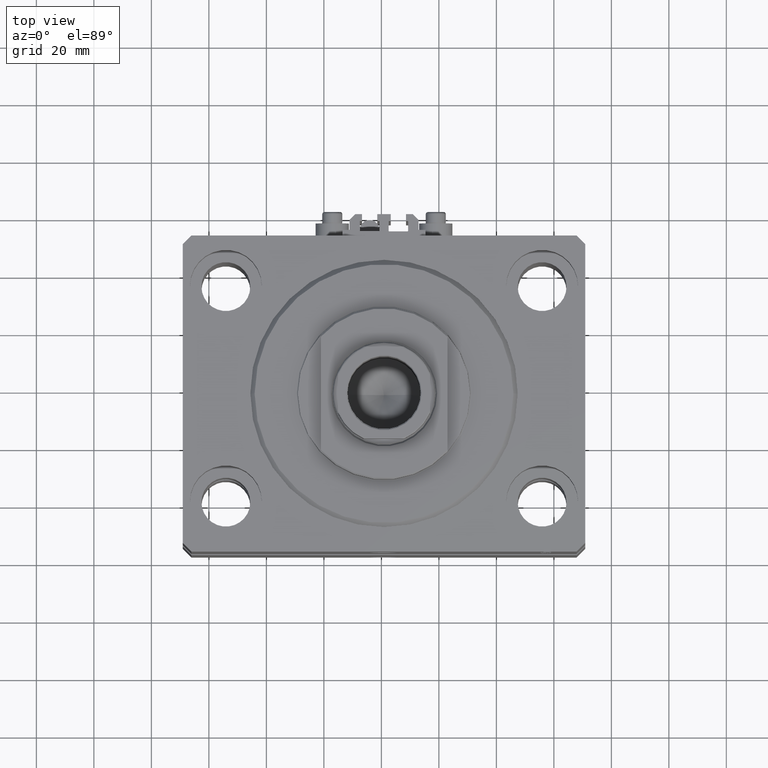
[diagram: clean part render]
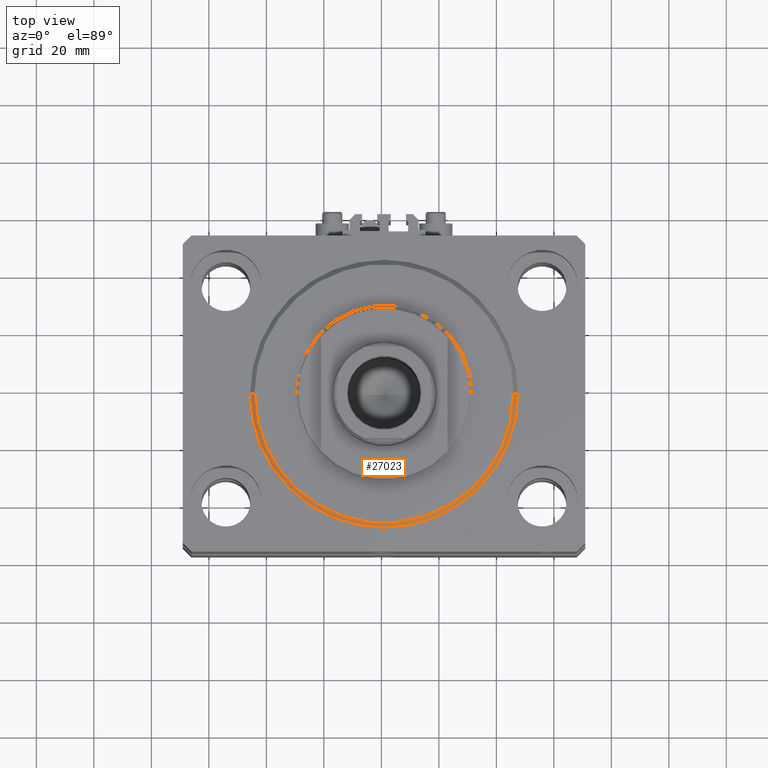
[diagram: same view with one face highlighted and labeled with its STEP entity id]
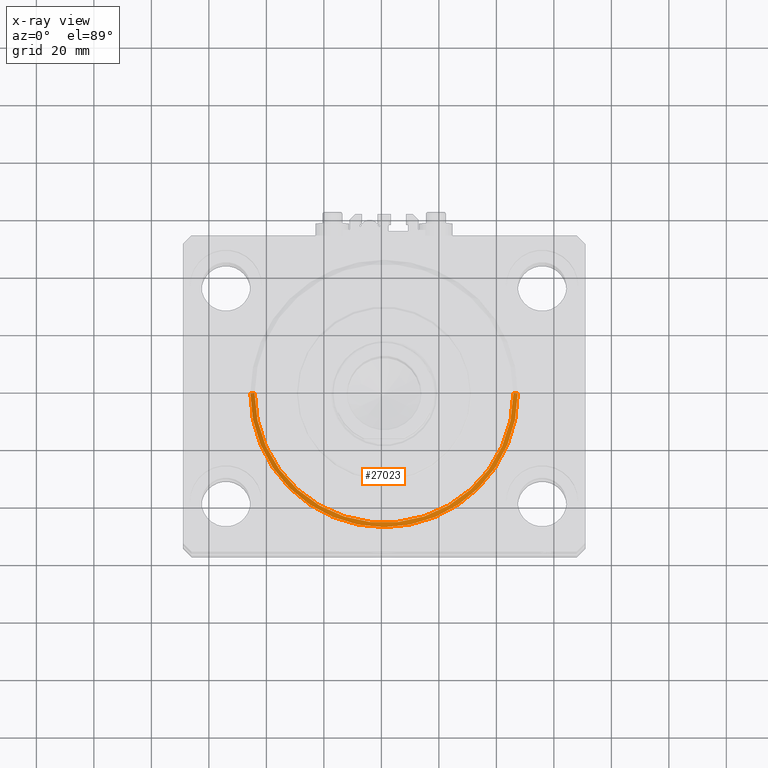
[diagram: x-ray of the same camera — body ghosted, the highlighted face saturated]
A machine part, top view. The second image highlights one B-rep face of the part: STEP entity #27023.
The next image is the same camera in x-ray: the body ghosted, the highlighted face saturated — about 0% of this face is hidden behind the body in this view.
In plain terms, the highlighted conical surface has half-angle 45 deg.
Its self-contained STEP definition (entity closure, byte-faithful):
#179 = EDGE_CURVE ( 'NONE', #33458, #33394, #7911, .T. ) ;
#748 = EDGE_LOOP ( 'NONE', ( #21574, #32615, #45317, #39785 ) ) ;
#3758 = EDGE_CURVE ( 'NONE', #41580, #33394, #24079, .T. ) ;
#4929 = DIRECTION ( 'NONE',  ( -0.000000000000000000, -0.000000000000000000, -1.000000000000000000 ) ) ;
#7911 = LINE ( 'NONE', #18937, #48557 ) ;
#9533 = AXIS2_PLACEMENT_3D ( 'NONE', #49423, #22587, #41404 ) ;
#10770 = DIRECTION ( 'NONE',  ( 1.000000000000000000, 0.000000000000000000, 0.000000000000000000 ) ) ;
#10871 = EDGE_CURVE ( 'NONE', #20201, #41580, #32992, .T. ) ;
#14641 = CARTESIAN_POINT ( 'NONE',  ( 46.50000000000000000, 5.694607616035192278E-15, 1.499999999999973577 ) ) ;
#15427 = CARTESIAN_POINT ( 'NONE',  ( -45.00000000000001421, 5.602759106099141706E-15, 0.000000000000000000 ) ) ;
#16931 = DIRECTION ( 'NONE',  ( 1.000000000000000000, 0.000000000000000000, 0.000000000000000000 ) ) ;
#18288 = DIRECTION ( 'NONE',  ( -0.000000000000000000, -0.000000000000000000, 1.000000000000000000 ) ) ;
#18937 = CARTESIAN_POINT ( 'NONE',  ( 46.50000000000000000, 0.000000000000000000, 1.499999999999973577 ) ) ;
#19033 = FACE_OUTER_BOUND ( 'NONE', #748, .T. ) ;
#20201 = VERTEX_POINT ( 'NONE', #15427 ) ;
#21574 = ORIENTED_EDGE ( 'NONE', *, *, #10871, .F. ) ;
#22053 = CARTESIAN_POINT ( 'NONE',  ( 0.000000000000000000, 0.000000000000000000, 1.499999999999973577 ) ) ;
#22587 = DIRECTION ( 'NONE',  ( -0.000000000000000000, -0.000000000000000000, 1.000000000000000000 ) ) ;
#24079 = CIRCLE ( 'NONE', #9533, 46.50000000000000000 ) ;
#26714 = DIRECTION ( 'NONE',  ( 0.7071067811865507924, 0.000000000000000000, 0.7071067811865441310 ) ) ;
#27023 = ADVANCED_FACE ( 'NONE', ( #19033 ), #31833, .T. ) ;
#31662 = CARTESIAN_POINT ( 'NONE',  ( 45.00000000000001421, 0.000000000000000000, 0.000000000000000000 ) ) ;
#31833 = CONICAL_SURFACE ( 'NONE', #45495, 46.50000000000000000, 0.7853981633974529419 ) ;
#32615 = ORIENTED_EDGE ( 'NONE', *, *, #44892, .F. ) ;
#32992 = LINE ( 'NONE', #48280, #43440 ) ;
#33394 = VERTEX_POINT ( 'NONE', #14641 ) ;
#33458 = VERTEX_POINT ( 'NONE', #31662 ) ;
#37244 = AXIS2_PLACEMENT_3D ( 'NONE', #47778, #4929, #16931 ) ;
#39506 = DIRECTION ( 'NONE',  ( -0.7071067811865507924, 8.659560562354972301E-17, 0.7071067811865441310 ) ) ;
#39785 = ORIENTED_EDGE ( 'NONE', *, *, #3758, .F. ) ;
#41404 = DIRECTION ( 'NONE',  ( 1.000000000000000000, 0.000000000000000000, 0.000000000000000000 ) ) ;
#41580 = VERTEX_POINT ( 'NONE', #43527 ) ;
#43440 = VECTOR ( 'NONE', #39506, 1000.000000000000114 ) ;
#43527 = CARTESIAN_POINT ( 'NONE',  ( -46.50000000000000000, 0.000000000000000000, 1.499999999999973577 ) ) ;
#44892 = EDGE_CURVE ( 'NONE', #33458, #20201, #49239, .T. ) ;
#45317 = ORIENTED_EDGE ( 'NONE', *, *, #179, .T. ) ;
#45495 = AXIS2_PLACEMENT_3D ( 'NONE', #22053, #18288, #10770 ) ;
#47778 = CARTESIAN_POINT ( 'NONE',  ( 0.000000000000000000, 0.000000000000000000, 0.000000000000000000 ) ) ;
#48280 = CARTESIAN_POINT ( 'NONE',  ( -46.50000000000000000, 5.694607616035192278E-15, 1.499999999999973577 ) ) ;
#48557 = VECTOR ( 'NONE', #26714, 1000.000000000000114 ) ;
#49239 = CIRCLE ( 'NONE', #37244, 45.00000000000001421 ) ;
#49423 = CARTESIAN_POINT ( 'NONE',  ( 0.000000000000000000, 0.000000000000000000, 1.499999999999973577 ) ) ;